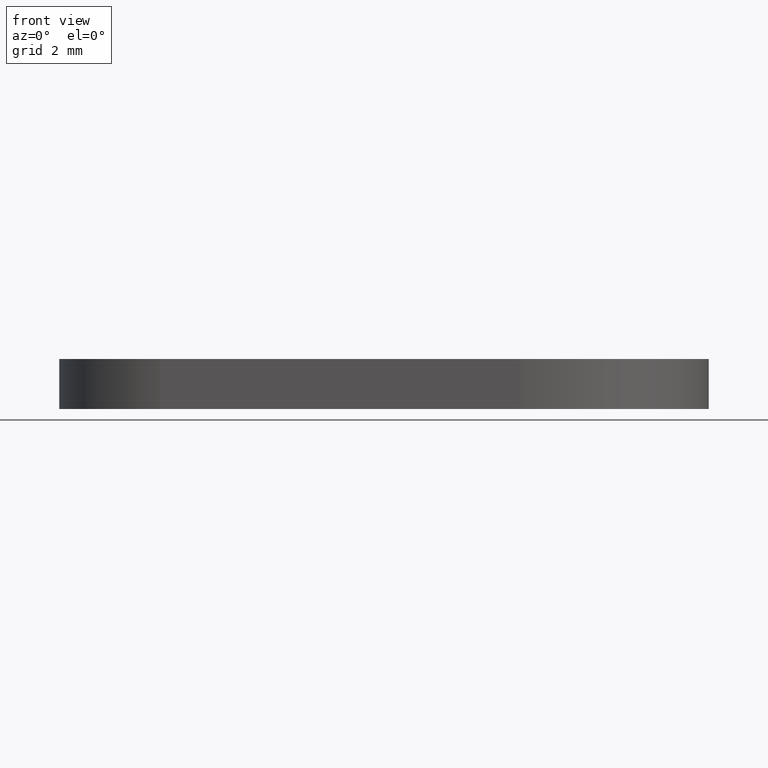
[diagram: clean part render]
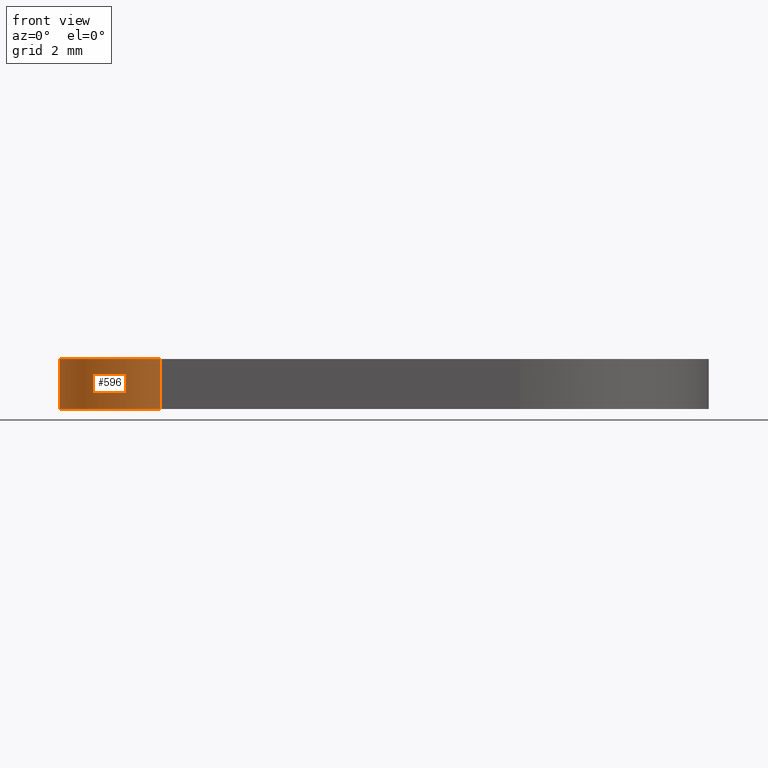
[diagram: same view with one face highlighted and labeled with its STEP entity id]
A machine part, front view. The second image highlights one B-rep face of the part: STEP entity #596.
In plain terms, the highlighted face is a freeform B-spline surface patch.
Its self-contained STEP definition (entity closure, byte-faithful):
#434=CARTESIAN_POINT('',(-0.477272620487599,-3.467305992515355,0.0));
#435=VERTEX_POINT('',#434);
#441=CARTESIAN_POINT('',(-0.477273000000000,3.467306000000000,0.0));
#442=VERTEX_POINT('',#441);
#443=CARTESIAN_POINT('',(-0.477273000000000,3.467306000000000,0.0));
#444=CARTESIAN_POINT('',(-3.500000163435459,3.051229002885575,0.0));
#445=CARTESIAN_POINT('',(-3.499999999999995,-0.000000187473338,0.0));
#446=CARTESIAN_POINT('',(-3.499999836564531,-3.051229377832254,0.0));
#447=CARTESIAN_POINT('',(-0.477272620487600,-3.467305992515356,0.0));
#455=(BOUNDED_CURVE()B_SPLINE_CURVE(2,(#443,#444,#445,#446,#447),.UNSPECIFIED.,.F.,.U.)B_SPLINE_CURVE_WITH_KNOTS((3,2,3),(0.0,0.500000000000000,1.0),.UNSPECIFIED.)CURVE()GEOMETRIC_REPRESENTATION_ITEM()RATIONAL_B_SPLINE_CURVE((1.0,0.753778368924535,1.0,0.753778368924535,1.0))REPRESENTATION_ITEM(''));
#456=EDGE_CURVE('',#442,#435,#455,.T.);
#504=CARTESIAN_POINT('',(-0.477273000000000,3.467306000000000,1.500000000000055));
#505=VERTEX_POINT('',#504);
#511=CARTESIAN_POINT('',(-0.477272620487599,-3.467305992515355,1.500000000000055));
#512=VERTEX_POINT('',#511);
#513=CARTESIAN_POINT('',(-0.477273000000000,3.467306000000000,1.500000000000055));
#514=CARTESIAN_POINT('',(-3.500000163435459,3.051229002885575,1.500000000000055));
#515=CARTESIAN_POINT('',(-3.499999999999995,-0.000000187473338,1.500000000000055));
#516=CARTESIAN_POINT('',(-3.499999836564531,-3.051229377832254,1.500000000000055));
#517=CARTESIAN_POINT('',(-0.477272620487600,-3.467305992515356,1.500000000000055));
#525=(BOUNDED_CURVE()B_SPLINE_CURVE(2,(#513,#514,#515,#516,#517),.UNSPECIFIED.,.F.,.U.)B_SPLINE_CURVE_WITH_KNOTS((3,2,3),(0.0,0.500000000000000,1.0),.UNSPECIFIED.)CURVE()GEOMETRIC_REPRESENTATION_ITEM()RATIONAL_B_SPLINE_CURVE((1.0,0.753778368924535,1.0,0.753778368924535,1.0))REPRESENTATION_ITEM(''));
#526=EDGE_CURVE('',#505,#512,#525,.T.);
#560=CARTESIAN_POINT('',(-0.477272620487599,-3.467305992515355,1.500000000000055));
#561=CARTESIAN_POINT('',(-0.477272620487599,-3.467305992515355,0.0));
#562=QUASI_UNIFORM_CURVE('',1,(#560,#561),.UNSPECIFIED.,.F.,.U.);
#563=EDGE_CURVE('',#512,#435,#562,.T.);
#568=CARTESIAN_POINT('',(-0.386345954002416,3.478611332676584,1.537500000000057));
#569=CARTESIAN_POINT('',(-0.386345954002416,3.478611332676584,-0.038437500000001));
#570=CARTESIAN_POINT('',(-3.546094019074515,3.127679376254689,1.537500000000056));
#571=CARTESIAN_POINT('',(-3.546094019074515,3.127679376254689,-0.038437500000001));
#572=CARTESIAN_POINT('',(-3.499626114837762,-0.051157172962779,1.537500000000057));
#573=CARTESIAN_POINT('',(-3.499626114837762,-0.051157172962779,-0.038437500000001));
#574=CARTESIAN_POINT('',(-3.453158210601009,-3.229993722180246,1.537500000000056));
#575=CARTESIAN_POINT('',(-3.453158210601009,-3.229993722180246,-0.038437500000001));
#576=CARTESIAN_POINT('',(-0.284502643029691,-3.488417728155433,1.537500000000057));
#577=CARTESIAN_POINT('',(-0.284502643029691,-3.488417728155433,-0.038437500000001));
#585=(BOUNDED_SURFACE()B_SPLINE_SURFACE(1,2,((#568,#570,#572,#574,#576),(#569,#571,#573,#575,#577)),.UNSPECIFIED.,.F.,.F.,.U.)B_SPLINE_SURFACE_WITH_KNOTS((2,2),(3,2,3),(0.0,1.0),(0.0,5.409169779008969,10.818339558017939),.UNSPECIFIED.)GEOMETRIC_REPRESENTATION_ITEM()RATIONAL_B_SPLINE_SURFACE(((1.0,0.740218127486832,1.0,0.740218127486832,1.0),(1.0,0.740218127486832,1.0,0.740218127486832,1.0)))REPRESENTATION_ITEM('')SURFACE());
#586=ORIENTED_EDGE('',*,*,#456,.T.);
#587=ORIENTED_EDGE('',*,*,#563,.F.);
#588=ORIENTED_EDGE('',*,*,#526,.F.);
#589=CARTESIAN_POINT('',(-0.477273000000000,3.467306000000000,1.500000000000055));
#590=CARTESIAN_POINT('',(-0.477273000000000,3.467306000000000,0.0));
#591=QUASI_UNIFORM_CURVE('',1,(#589,#590),.UNSPECIFIED.,.F.,.U.);
#592=EDGE_CURVE('',#505,#442,#591,.T.);
#593=ORIENTED_EDGE('',*,*,#592,.T.);
#594=EDGE_LOOP('',(#586,#587,#588,#593));
#595=FACE_OUTER_BOUND('',#594,.T.);
#596=ADVANCED_FACE('',(#595),#585,.T.);